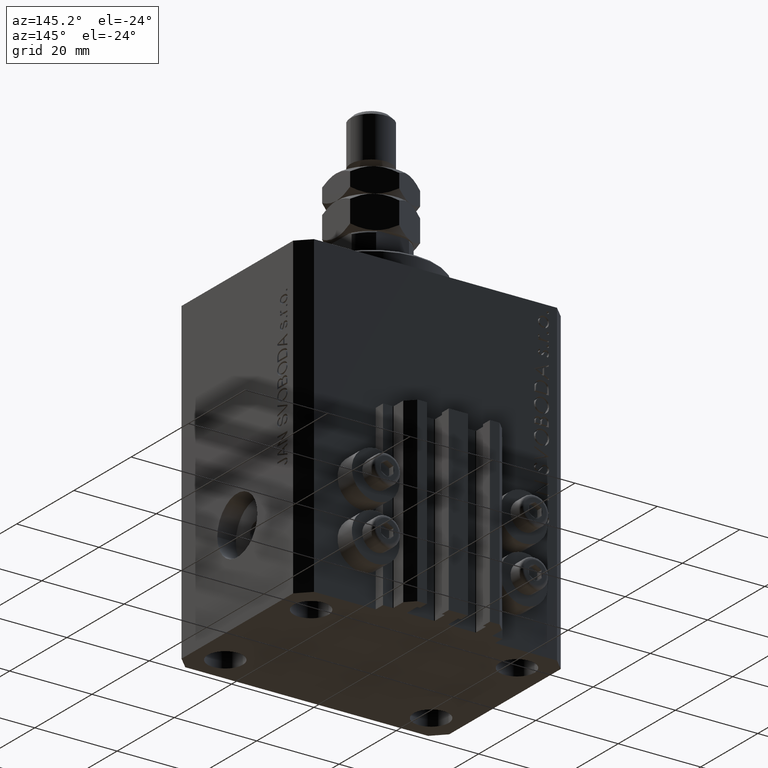
[diagram: clean part render]
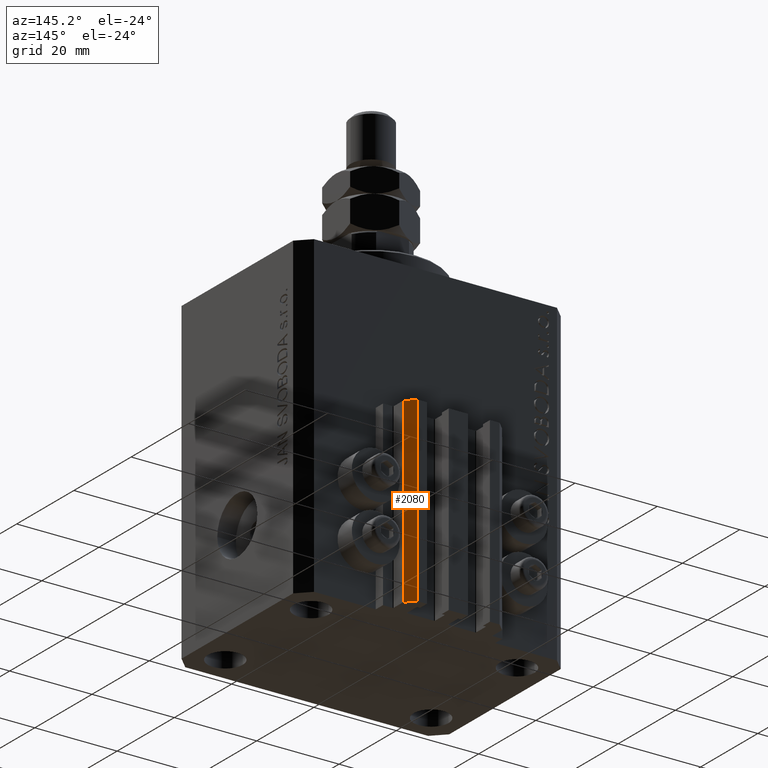
[diagram: same view with one face highlighted and labeled with its STEP entity id]
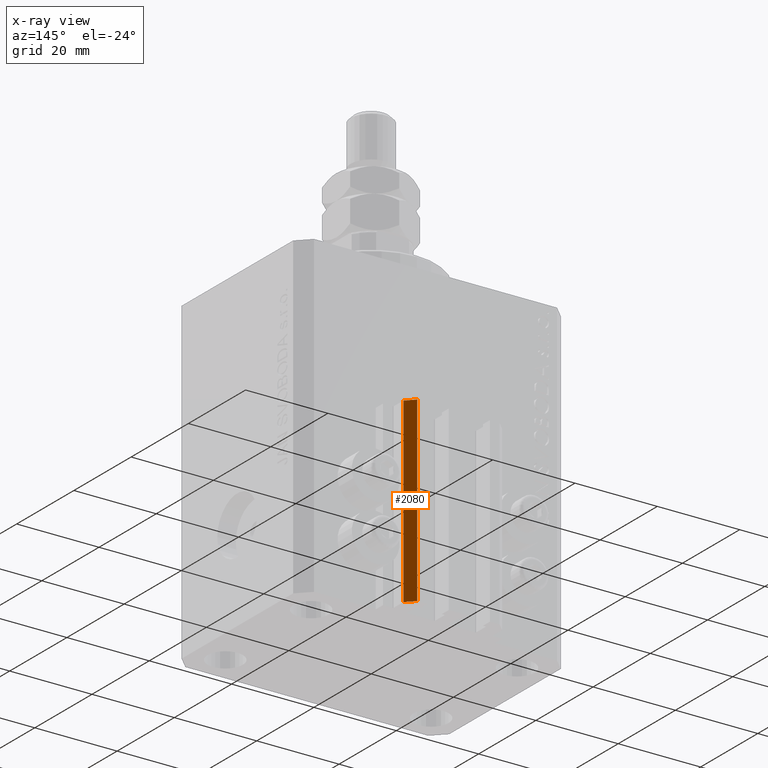
[diagram: x-ray of the same camera — body ghosted, the highlighted face saturated]
A machine part, auxiliary view. The second image highlights one B-rep face of the part: STEP entity #2080.
The next image is the same camera in x-ray: the body ghosted, the highlighted face saturated — about 0% of this face is hidden behind the body in this view.
In plain terms, the highlighted planar face has unit normal (0.7071, 0.7071, 0).
Its self-contained STEP definition (entity closure, byte-faithful):
#1355 = CARTESIAN_POINT ( 'NONE',  ( 12.00000000000000178, 28.49999999999950973, -77.00000000000000000 ) ) ;
#2067 = DIRECTION ( 'NONE',  ( -0.7071067811865507924, 0.7071067811865441310, 0.000000000000000000 ) ) ;
#2080 = ADVANCED_FACE ( 'NONE', ( #42675 ), #27619, .T. ) ;
#3302 = CARTESIAN_POINT ( 'NONE',  ( 12.00000000000000178, 28.49999999999950973, -77.00000000000000000 ) ) ;
#4702 = DIRECTION ( 'NONE',  ( 0.7071067811865442421, 0.7071067811865509034, -0.000000000000000000 ) ) ;
#4963 = VECTOR ( 'NONE', #2067, 1000.000000000000000 ) ;
#6145 = VECTOR ( 'NONE', #13929, 1000.000000000000000 ) ;
#6282 = LINE ( 'NONE', #10709, #4963 ) ;
#6940 = EDGE_LOOP ( 'NONE', ( #46694, #24624, #35869, #43530 ) ) ;
#10156 = VERTEX_POINT ( 'NONE', #27626 ) ;
#10709 = CARTESIAN_POINT ( 'NONE',  ( 12.00000000000000178, 28.49999999999950973, -33.00000000000000000 ) ) ;
#11309 = CARTESIAN_POINT ( 'NONE',  ( 9.999999999999994671, 30.49999999999949551, -77.00000000000000000 ) ) ;
#12617 = LINE ( 'NONE', #35088, #46465 ) ;
#13047 = CARTESIAN_POINT ( 'NONE',  ( 12.00000000000000178, 28.49999999999950973, -33.00000000000000000 ) ) ;
#13186 = EDGE_CURVE ( 'NONE', #10156, #23553, #32183, .T. ) ;
#13929 = DIRECTION ( 'NONE',  ( -0.7071067811865507924, 0.7071067811865441310, 0.000000000000000000 ) ) ;
#14172 = CARTESIAN_POINT ( 'NONE',  ( 12.00000000000000178, 28.49999999999950973, -77.00000000000000000 ) ) ;
#15080 = EDGE_CURVE ( 'NONE', #23553, #39623, #6282, .T. ) ;
#20781 = AXIS2_PLACEMENT_3D ( 'NONE', #3302, #4702, #34802 ) ;
#23553 = VERTEX_POINT ( 'NONE', #13047 ) ;
#24624 = ORIENTED_EDGE ( 'NONE', *, *, #13186, .F. ) ;
#27202 = VECTOR ( 'NONE', #31683, 1000.000000000000000 ) ;
#27619 = PLANE ( 'NONE',  #20781 ) ;
#27626 = CARTESIAN_POINT ( 'NONE',  ( 12.00000000000000178, 28.49999999999950973, -77.00000000000000000 ) ) ;
#29461 = LINE ( 'NONE', #14172, #6145 ) ;
#29614 = VERTEX_POINT ( 'NONE', #11309 ) ;
#31683 = DIRECTION ( 'NONE',  ( 0.000000000000000000, 0.000000000000000000, 1.000000000000000000 ) ) ;
#32183 = LINE ( 'NONE', #1355, #27202 ) ;
#34802 = DIRECTION ( 'NONE',  ( -0.7071067811865507924, 0.7071067811865441310, 0.000000000000000000 ) ) ;
#35088 = CARTESIAN_POINT ( 'NONE',  ( 9.999999999999994671, 30.49999999999949551, -77.00000000000000000 ) ) ;
#35869 = ORIENTED_EDGE ( 'NONE', *, *, #39063, .T. ) ;
#39031 = DIRECTION ( 'NONE',  ( 0.000000000000000000, 0.000000000000000000, 1.000000000000000000 ) ) ;
#39063 = EDGE_CURVE ( 'NONE', #10156, #29614, #29461, .T. ) ;
#39623 = VERTEX_POINT ( 'NONE', #46793 ) ;
#42675 = FACE_OUTER_BOUND ( 'NONE', #6940, .T. ) ;
#43530 = ORIENTED_EDGE ( 'NONE', *, *, #48399, .T. ) ;
#46465 = VECTOR ( 'NONE', #39031, 1000.000000000000000 ) ;
#46694 = ORIENTED_EDGE ( 'NONE', *, *, #15080, .F. ) ;
#46793 = CARTESIAN_POINT ( 'NONE',  ( 9.999999999999994671, 30.49999999999949551, -33.00000000000000000 ) ) ;
#48399 = EDGE_CURVE ( 'NONE', #29614, #39623, #12617, .T. ) ;